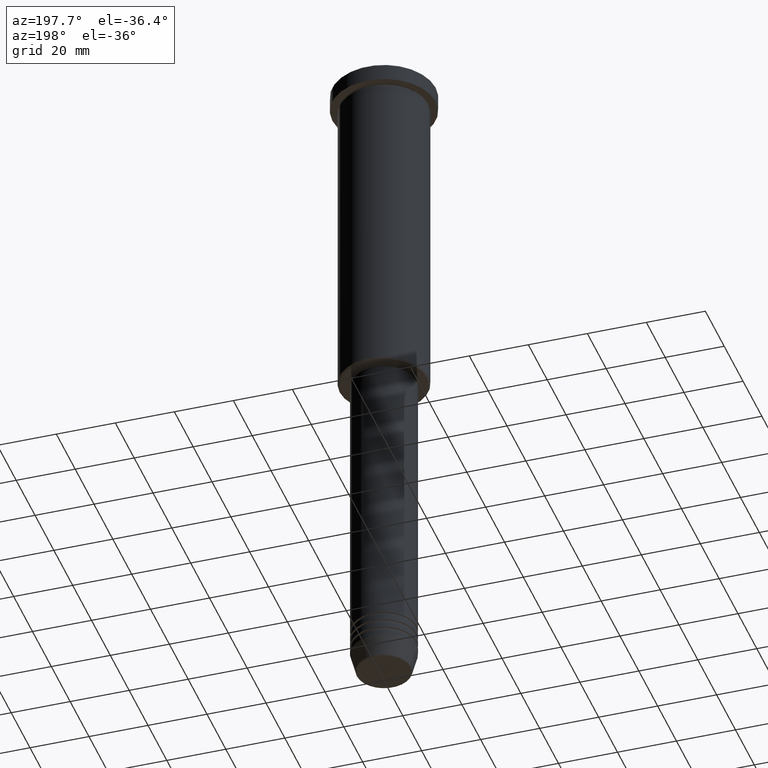
[diagram: clean part render]
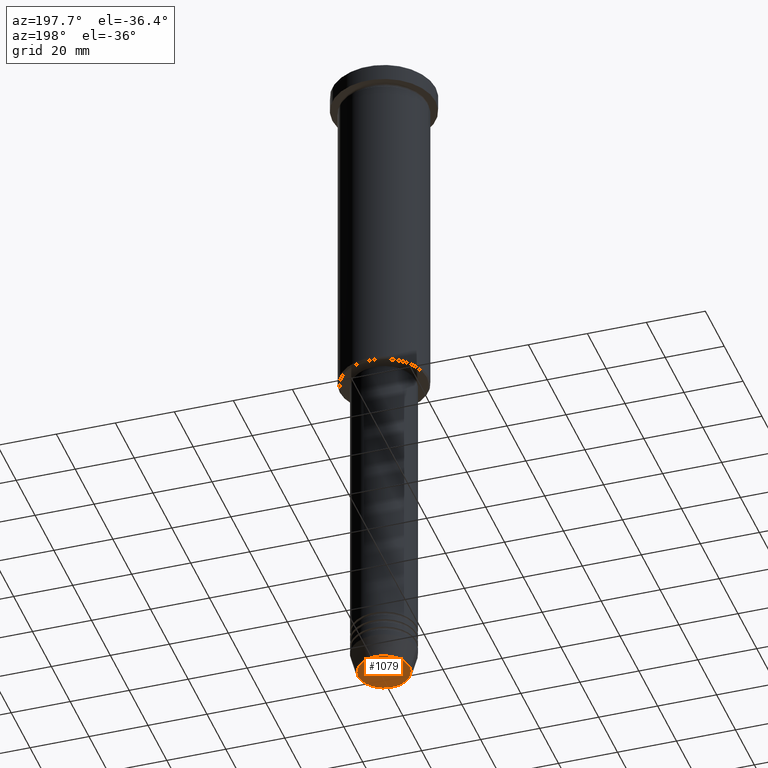
[diagram: same view with one face highlighted and labeled with its STEP entity id]
A machine part, auxiliary view. The second image highlights one B-rep face of the part: STEP entity #1079.
In plain terms, the highlighted planar face has unit normal (0, -0, 1).
Its self-contained STEP definition (entity closure, byte-faithful):
#110 = DIRECTION ( 'NONE',  ( 1.000000000000000000, 0.000000000000000000, 0.000000000000000000 ) ) ;
#154 = EDGE_CURVE ( 'NONE', #900, #562, #1089, .T. ) ;
#189 = CARTESIAN_POINT ( 'NONE',  ( 0.000000000000000000, 0.000000000000000000, -230.9999999999999716 ) ) ;
#232 = AXIS2_PLACEMENT_3D ( 'NONE', #189, #491, #110 ) ;
#270 = CARTESIAN_POINT ( 'NONE',  ( -8.740692158992663607, 1.099999016768740442E-15, -230.9999999999999716 ) ) ;
#275 = EDGE_LOOP ( 'NONE', ( #1073, #869 ) ) ;
#287 = PLANE ( 'NONE',  #965 ) ;
#306 = CARTESIAN_POINT ( 'NONE',  ( 0.000000000000000000, 0.000000000000000000, -230.9999999999999716 ) ) ;
#394 = DIRECTION ( 'NONE',  ( 0.000000000000000000, -0.000000000000000000, 1.000000000000000000 ) ) ;
#405 = DIRECTION ( 'NONE',  ( 1.000000000000000000, 0.000000000000000000, 0.000000000000000000 ) ) ;
#429 = CARTESIAN_POINT ( 'NONE',  ( 8.740692158992663607, 0.000000000000000000, -230.9999999999999716 ) ) ;
#491 = DIRECTION ( 'NONE',  ( 0.000000000000000000, 0.000000000000000000, -1.000000000000000000 ) ) ;
#507 = EDGE_CURVE ( 'NONE', #562, #900, #701, .T. ) ;
#562 = VERTEX_POINT ( 'NONE', #429 ) ;
#582 = AXIS2_PLACEMENT_3D ( 'NONE', #826, #744, #1096 ) ;
#701 = CIRCLE ( 'NONE', #582, 8.740692158992663607 ) ;
#744 = DIRECTION ( 'NONE',  ( 0.000000000000000000, 0.000000000000000000, -1.000000000000000000 ) ) ;
#826 = CARTESIAN_POINT ( 'NONE',  ( 0.000000000000000000, 0.000000000000000000, -230.9999999999999716 ) ) ;
#857 = FACE_OUTER_BOUND ( 'NONE', #275, .T. ) ;
#869 = ORIENTED_EDGE ( 'NONE', *, *, #154, .T. ) ;
#900 = VERTEX_POINT ( 'NONE', #270 ) ;
#965 = AXIS2_PLACEMENT_3D ( 'NONE', #306, #394, #405 ) ;
#1073 = ORIENTED_EDGE ( 'NONE', *, *, #507, .T. ) ;
#1079 = ADVANCED_FACE ( 'NONE', ( #857 ), #287, .F. ) ;
#1089 = CIRCLE ( 'NONE', #232, 8.740692158992663607 ) ;
#1096 = DIRECTION ( 'NONE',  ( 1.000000000000000000, 0.000000000000000000, 0.000000000000000000 ) ) ;